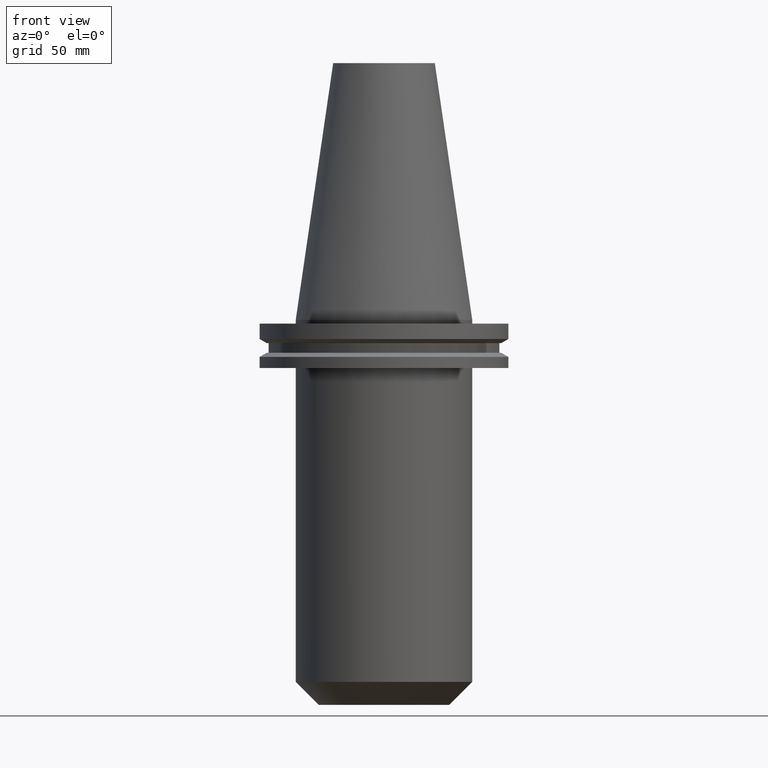
[diagram: clean part render]
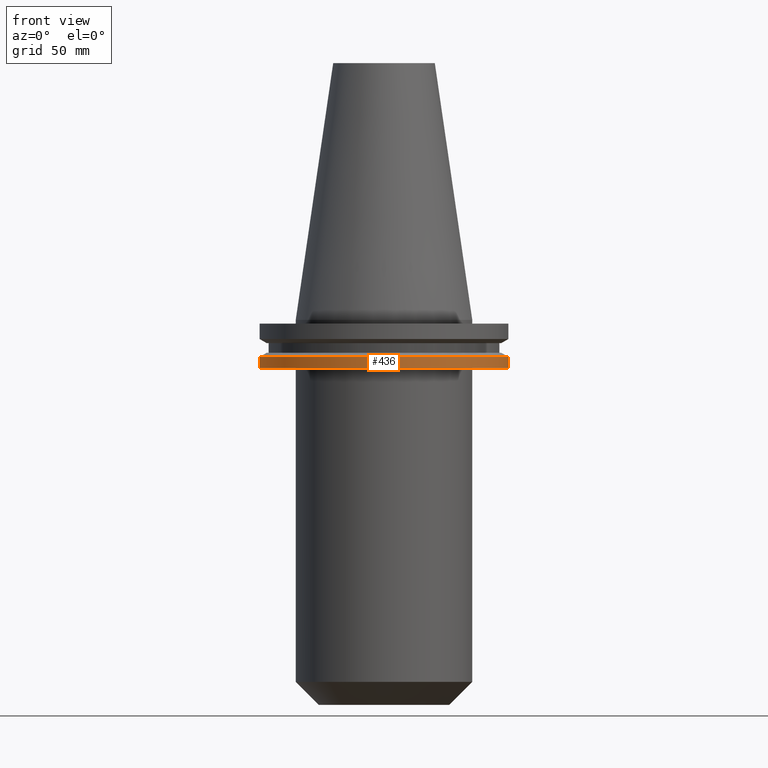
[diagram: same view with one face highlighted and labeled with its STEP entity id]
A machine part, front view. The second image highlights one B-rep face of the part: STEP entity #436.
In plain terms, the highlighted cylindrical surface (partial cylindrical patch) has radius 49.215 mm, axis along (-0, -0, 1).
Its self-contained STEP definition (entity closure, byte-faithful):
#5 = EDGE_LOOP ( 'NONE', ( #102, #155, #376, #27 ) ) ;
#27 = ORIENTED_EDGE ( 'NONE', *, *, #138, .F. ) ;
#55 = EDGE_CURVE ( 'NONE', #412, #425, #176, .T. ) ;
#94 = CARTESIAN_POINT ( 'NONE',  ( -49.21499999999998920, 6.027099222003697037E-15, 101.5999999999999943 ) ) ;
#102 = ORIENTED_EDGE ( 'NONE', *, *, #408, .F. ) ;
#106 = CARTESIAN_POINT ( 'NONE',  ( 49.21499999999998920, 0.000000000000000000, 101.5999999999999943 ) ) ;
#107 = VERTEX_POINT ( 'NONE', #734 ) ;
#112 = CIRCLE ( 'NONE', #281, 49.21499999999998920 ) ;
#134 = DIRECTION ( 'NONE',  ( -0.000000000000000000, -0.000000000000000000, 1.000000000000000000 ) ) ;
#138 = EDGE_CURVE ( 'NONE', #107, #728, #112, .T. ) ;
#155 = ORIENTED_EDGE ( 'NONE', *, *, #55, .T. ) ;
#176 = CIRCLE ( 'NONE', #293, 49.21499999999998920 ) ;
#187 = DIRECTION ( 'NONE',  ( 1.000000000000000000, 0.000000000000000000, 0.000000000000000000 ) ) ;
#228 = VECTOR ( 'NONE', #299, 1000.000000000000000 ) ;
#281 = AXIS2_PLACEMENT_3D ( 'NONE', #565, #134, #387 ) ;
#292 = DIRECTION ( 'NONE',  ( -0.000000000000000000, -0.000000000000000000, 1.000000000000000000 ) ) ;
#293 = AXIS2_PLACEMENT_3D ( 'NONE', #726, #513, #187 ) ;
#299 = DIRECTION ( 'NONE',  ( -0.000000000000000000, -0.000000000000000000, 1.000000000000000000 ) ) ;
#344 = EDGE_CURVE ( 'NONE', #425, #728, #548, .T. ) ;
#347 = CARTESIAN_POINT ( 'NONE',  ( -49.21499999999998920, 6.027099222003697037E-15, -19.04999999999999716 ) ) ;
#364 = CYLINDRICAL_SURFACE ( 'NONE', #635, 49.21499999999998920 ) ;
#376 = ORIENTED_EDGE ( 'NONE', *, *, #344, .T. ) ;
#387 = DIRECTION ( 'NONE',  ( 1.000000000000000000, 0.000000000000000000, 0.000000000000000000 ) ) ;
#408 = EDGE_CURVE ( 'NONE', #412, #107, #476, .T. ) ;
#412 = VERTEX_POINT ( 'NONE', #347 ) ;
#425 = VERTEX_POINT ( 'NONE', #714 ) ;
#436 = ADVANCED_FACE ( 'NONE', ( #653 ), #364, .T. ) ;
#458 = CARTESIAN_POINT ( 'NONE',  ( 49.21499999999998920, 0.000000000000000000, -14.65761014474876944 ) ) ;
#476 = LINE ( 'NONE', #94, #744 ) ;
#513 = DIRECTION ( 'NONE',  ( -0.000000000000000000, -0.000000000000000000, 1.000000000000000000 ) ) ;
#548 = LINE ( 'NONE', #106, #228 ) ;
#565 = CARTESIAN_POINT ( 'NONE',  ( 0.000000000000000000, 0.000000000000000000, -14.65761014474876944 ) ) ;
#598 = CARTESIAN_POINT ( 'NONE',  ( 0.000000000000000000, 0.000000000000000000, 101.5999999999999943 ) ) ;
#635 = AXIS2_PLACEMENT_3D ( 'NONE', #598, #709, #720 ) ;
#653 = FACE_OUTER_BOUND ( 'NONE', #5, .T. ) ;
#709 = DIRECTION ( 'NONE',  ( -0.000000000000000000, -0.000000000000000000, 1.000000000000000000 ) ) ;
#714 = CARTESIAN_POINT ( 'NONE',  ( 49.21499999999998920, 0.000000000000000000, -19.04999999999999716 ) ) ;
#720 = DIRECTION ( 'NONE',  ( 1.000000000000000000, 0.000000000000000000, 0.000000000000000000 ) ) ;
#726 = CARTESIAN_POINT ( 'NONE',  ( 0.000000000000000000, 0.000000000000000000, -19.04999999999999716 ) ) ;
#728 = VERTEX_POINT ( 'NONE', #458 ) ;
#734 = CARTESIAN_POINT ( 'NONE',  ( -49.21499999999998920, 6.027099222003697037E-15, -14.65761014474876944 ) ) ;
#744 = VECTOR ( 'NONE', #292, 1000.000000000000000 ) ;